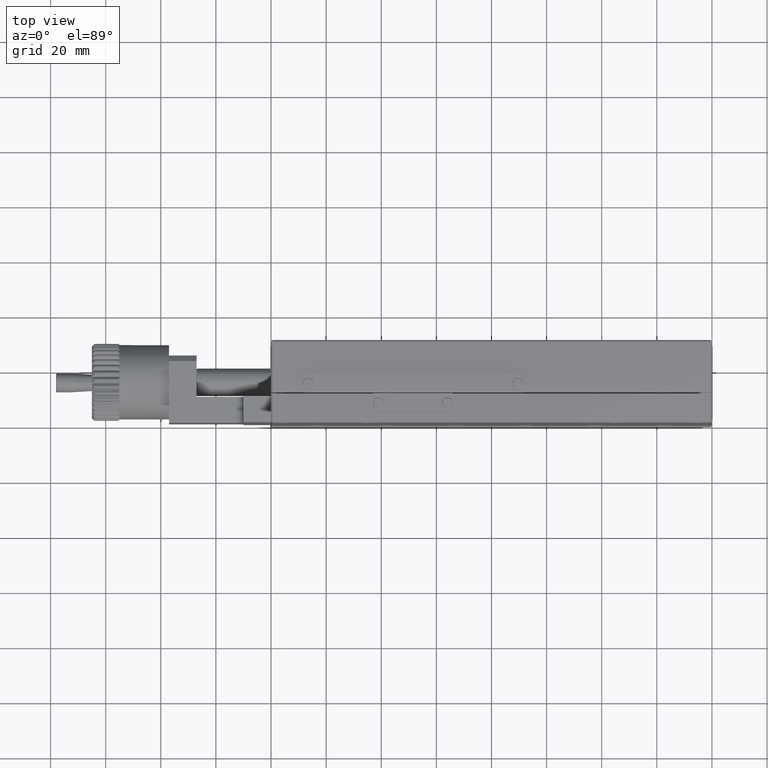
[diagram: clean part render]
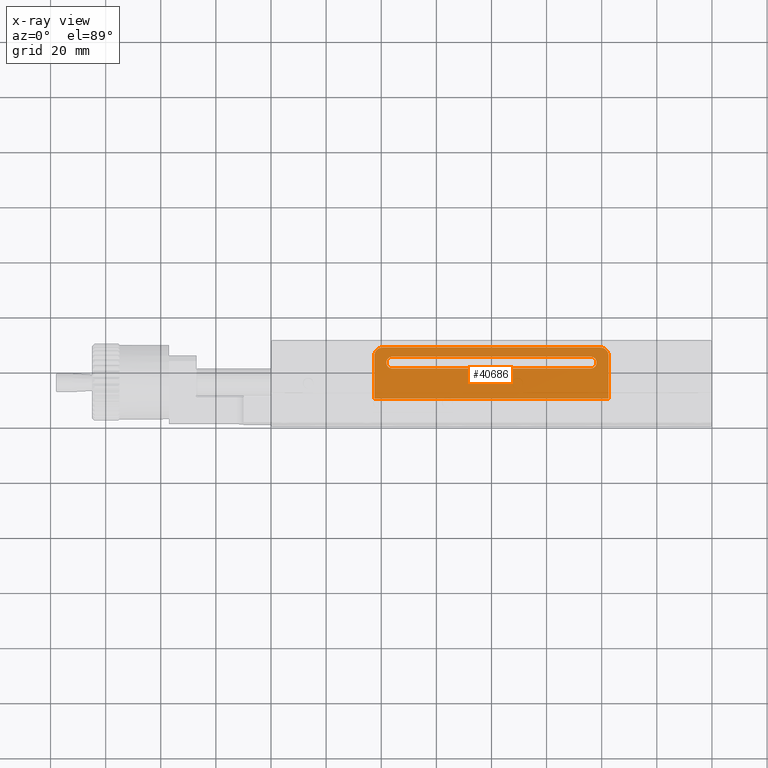
[diagram: x-ray — body ghosted, one internal face saturated and labeled with its STEP entity id]
A machine part, top view, then the same camera in x-ray: the body is ghosted and one INTERNAL B-rep face — a face not visible from any outside direction — is saturated and labeled: STEP entity #40686.
In plain terms, the highlighted planar face has unit normal (0, 0, 1).
Its self-contained STEP definition (entity closure, byte-faithful):
#12 = CARTESIAN_POINT ( 'NONE',  ( -119.5000000000000142, 29.00000000000000355, -50.00000000000000000 ) ) ;
#594 = VERTEX_POINT ( 'NONE', #68618 ) ;
#904 = ORIENTED_EDGE ( 'NONE', *, *, #37433, .T. ) ;
#1019 = PLANE ( 'NONE',  #24440 ) ;
#1251 = VERTEX_POINT ( 'NONE', #43826 ) ;
#1607 = AXIS2_PLACEMENT_3D ( 'NONE', #35941, #53904, #3656 ) ;
#1877 = ORIENTED_EDGE ( 'NONE', *, *, #56489, .T. ) ;
#2112 = ORIENTED_EDGE ( 'NONE', *, *, #30417, .T. ) ;
#2554 = CARTESIAN_POINT ( 'NONE',  ( -116.0000000000000000, 23.50000000000000000, -50.00000000000000000 ) ) ;
#2949 = EDGE_CURVE ( 'NONE', #55696, #69251, #19486, .T. ) ;
#3656 = DIRECTION ( 'NONE',  ( 1.000000000000000000, 0.000000000000000000, 0.000000000000000000 ) ) ;
#3946 = ORIENTED_EDGE ( 'NONE', *, *, #7355, .T. ) ;
#5203 = EDGE_CURVE ( 'NONE', #39299, #30226, #61717, .T. ) ;
#5345 = VECTOR ( 'NONE', #69229, 1000.000000000000000 ) ;
#5600 = CARTESIAN_POINT ( 'NONE',  ( -119.5000000000000142, 29.00000000000000000, -50.00000000000000000 ) ) ;
#5804 = DIRECTION ( 'NONE',  ( 0.000000000000000000, 0.000000000000000000, 1.000000000000000000 ) ) ;
#6062 = CARTESIAN_POINT ( 'NONE',  ( -37.49999999999999289, 26.00000000000000355, -50.00000000000000000 ) ) ;
#6680 = DIRECTION ( 'NONE',  ( 1.000000000000000000, 0.000000000000000000, 0.000000000000000000 ) ) ;
#6780 = EDGE_CURVE ( 'NONE', #10094, #594, #22556, .T. ) ;
#7355 = EDGE_CURVE ( 'NONE', #594, #39299, #53139, .T. ) ;
#7923 = CIRCLE ( 'NONE', #54731, 3.000000000000016431 ) ;
#8878 = ORIENTED_EDGE ( 'NONE', *, *, #2949, .T. ) ;
#10094 = VERTEX_POINT ( 'NONE', #46586 ) ;
#12723 = LINE ( 'NONE', #46856, #5345 ) ;
#12732 = EDGE_CURVE ( 'NONE', #10094, #69251, #44829, .T. ) ;
#13136 = CARTESIAN_POINT ( 'NONE',  ( -40.49999999999999289, 29.00000000000000000, -50.00000000000000000 ) ) ;
#14294 = ORIENTED_EDGE ( 'NONE', *, *, #12732, .F. ) ;
#16687 = DIRECTION ( 'NONE',  ( -0.000000000000000000, 1.000000000000000000, 0.000000000000000000 ) ) ;
#16786 = ORIENTED_EDGE ( 'NONE', *, *, #6780, .T. ) ;
#17088 = CARTESIAN_POINT ( 'NONE',  ( -122.5000000000000000, 26.00000000000000355, -50.00000000000000000 ) ) ;
#18657 = CARTESIAN_POINT ( 'NONE',  ( -44.00000000000000000, 23.50000000000000000, -50.00000000000000000 ) ) ;
#19416 = DIRECTION ( 'NONE',  ( -0.000000000000000000, -0.000000000000000000, -1.000000000000000000 ) ) ;
#19486 = LINE ( 'NONE', #53213, #53640 ) ;
#19493 = CARTESIAN_POINT ( 'NONE',  ( -116.0000000000000000, 21.35000000000000142, -50.00000000000000000 ) ) ;
#20609 = CARTESIAN_POINT ( 'NONE',  ( -44.00000000000000000, 25.64999999999999858, -50.00000000000000000 ) ) ;
#21717 = DIRECTION ( 'NONE',  ( -1.000000000000000000, -0.000000000000000000, 0.000000000000000000 ) ) ;
#21967 = VECTOR ( 'NONE', #23176, 1000.000000000000000 ) ;
#22135 = CARTESIAN_POINT ( 'NONE',  ( -44.00000000000000000, 21.35000000000000142, -50.00000000000000000 ) ) ;
#22389 = CARTESIAN_POINT ( 'NONE',  ( -122.5000000000000000, 10.50000000000000000, -50.00000000000000000 ) ) ;
#22556 = LINE ( 'NONE', #6062, #26447 ) ;
#22807 = DIRECTION ( 'NONE',  ( -1.000000000000000000, -0.000000000000000000, 0.000000000000000000 ) ) ;
#23176 = DIRECTION ( 'NONE',  ( -1.000000000000000000, -0.000000000000000000, 0.000000000000000000 ) ) ;
#23900 = CIRCLE ( 'NONE', #53169, 2.149999999999999023 ) ;
#24440 = AXIS2_PLACEMENT_3D ( 'NONE', #40629, #5804, #63017 ) ;
#26447 = VECTOR ( 'NONE', #16687, 1000.000000000000000 ) ;
#26518 = EDGE_CURVE ( 'NONE', #1251, #47397, #12723, .T. ) ;
#26972 = EDGE_LOOP ( 'NONE', ( #904, #2112, #52024, #1877 ) ) ;
#27871 = VECTOR ( 'NONE', #22807, 1000.000000000000000 ) ;
#29077 = VERTEX_POINT ( 'NONE', #19493 ) ;
#29695 = DIRECTION ( 'NONE',  ( 1.000000000000000000, 0.000000000000000000, 0.000000000000000000 ) ) ;
#29984 = EDGE_CURVE ( 'NONE', #30226, #55696, #7923, .T. ) ;
#30181 = CIRCLE ( 'NONE', #58303, 2.149999999999999023 ) ;
#30226 = VERTEX_POINT ( 'NONE', #12 ) ;
#30417 = EDGE_CURVE ( 'NONE', #29077, #1251, #30181, .T. ) ;
#34419 = DIRECTION ( 'NONE',  ( -0.000000000000000000, -0.000000000000000000, -1.000000000000000000 ) ) ;
#35941 = CARTESIAN_POINT ( 'NONE',  ( -40.50000000000000000, 26.00000000000000355, -50.00000000000000000 ) ) ;
#36359 = DIRECTION ( 'NONE',  ( 0.000000000000000000, -1.000000000000000000, -0.000000000000000000 ) ) ;
#37433 = EDGE_CURVE ( 'NONE', #66851, #29077, #43413, .T. ) ;
#39299 = VERTEX_POINT ( 'NONE', #13136 ) ;
#40629 = CARTESIAN_POINT ( 'NONE',  ( -119.5000000000000142, 26.00000000000000355, -50.00000000000000000 ) ) ;
#40686 = ADVANCED_FACE ( 'NONE', ( #51273, #46139 ), #1019, .T. ) ;
#41053 = DIRECTION ( 'NONE',  ( 1.000000000000000000, 0.000000000000000000, 0.000000000000000000 ) ) ;
#43413 = LINE ( 'NONE', #59896, #70999 ) ;
#43826 = CARTESIAN_POINT ( 'NONE',  ( -116.0000000000000000, 25.64999999999999858, -50.00000000000000000 ) ) ;
#44829 = LINE ( 'NONE', #61706, #21967 ) ;
#45212 = DIRECTION ( 'NONE',  ( 0.000000000000000000, 0.000000000000000000, 1.000000000000000000 ) ) ;
#45579 = CARTESIAN_POINT ( 'NONE',  ( -119.5000000000000142, 26.00000000000000355, -50.00000000000000000 ) ) ;
#46139 = FACE_BOUND ( 'NONE', #26972, .T. ) ;
#46586 = CARTESIAN_POINT ( 'NONE',  ( -37.50000000000000711, 10.50000000000000000, -50.00000000000000000 ) ) ;
#46856 = CARTESIAN_POINT ( 'NONE',  ( -119.5000000000000142, 25.64999999999999858, -50.00000000000000000 ) ) ;
#47397 = VERTEX_POINT ( 'NONE', #20609 ) ;
#50865 = ORIENTED_EDGE ( 'NONE', *, *, #5203, .T. ) ;
#51273 = FACE_OUTER_BOUND ( 'NONE', #55410, .T. ) ;
#52024 = ORIENTED_EDGE ( 'NONE', *, *, #26518, .T. ) ;
#53089 = ORIENTED_EDGE ( 'NONE', *, *, #29984, .T. ) ;
#53139 = CIRCLE ( 'NONE', #1607, 3.000000000000002665 ) ;
#53169 = AXIS2_PLACEMENT_3D ( 'NONE', #18657, #34419, #41053 ) ;
#53213 = CARTESIAN_POINT ( 'NONE',  ( -122.5000000000000000, 26.00000000000000355, -50.00000000000000000 ) ) ;
#53640 = VECTOR ( 'NONE', #36359, 1000.000000000000000 ) ;
#53904 = DIRECTION ( 'NONE',  ( 0.000000000000000000, 0.000000000000000000, 1.000000000000000000 ) ) ;
#54731 = AXIS2_PLACEMENT_3D ( 'NONE', #45579, #45212, #6680 ) ;
#55410 = EDGE_LOOP ( 'NONE', ( #50865, #53089, #8878, #14294, #16786, #3946 ) ) ;
#55696 = VERTEX_POINT ( 'NONE', #17088 ) ;
#56489 = EDGE_CURVE ( 'NONE', #47397, #66851, #23900, .T. ) ;
#58303 = AXIS2_PLACEMENT_3D ( 'NONE', #2554, #19416, #29695 ) ;
#59896 = CARTESIAN_POINT ( 'NONE',  ( -119.5000000000000142, 21.35000000000000142, -50.00000000000000000 ) ) ;
#61706 = CARTESIAN_POINT ( 'NONE',  ( -160.0000000000000000, 10.50000000000000000, -50.00000000000000000 ) ) ;
#61717 = LINE ( 'NONE', #5600, #27871 ) ;
#63017 = DIRECTION ( 'NONE',  ( 1.000000000000000000, 0.000000000000000000, -0.000000000000000000 ) ) ;
#66851 = VERTEX_POINT ( 'NONE', #22135 ) ;
#68618 = CARTESIAN_POINT ( 'NONE',  ( -37.49999999999999289, 26.00000000000000355, -50.00000000000000000 ) ) ;
#69229 = DIRECTION ( 'NONE',  ( 1.000000000000000000, 0.000000000000000000, -0.000000000000000000 ) ) ;
#69251 = VERTEX_POINT ( 'NONE', #22389 ) ;
#70999 = VECTOR ( 'NONE', #21717, 1000.000000000000000 ) ;